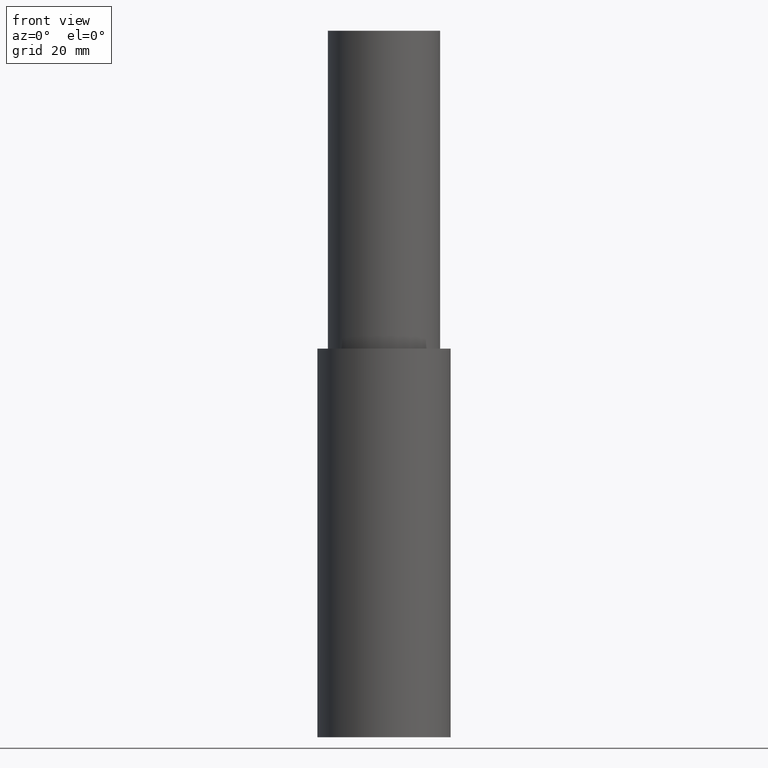
[diagram: clean part render]
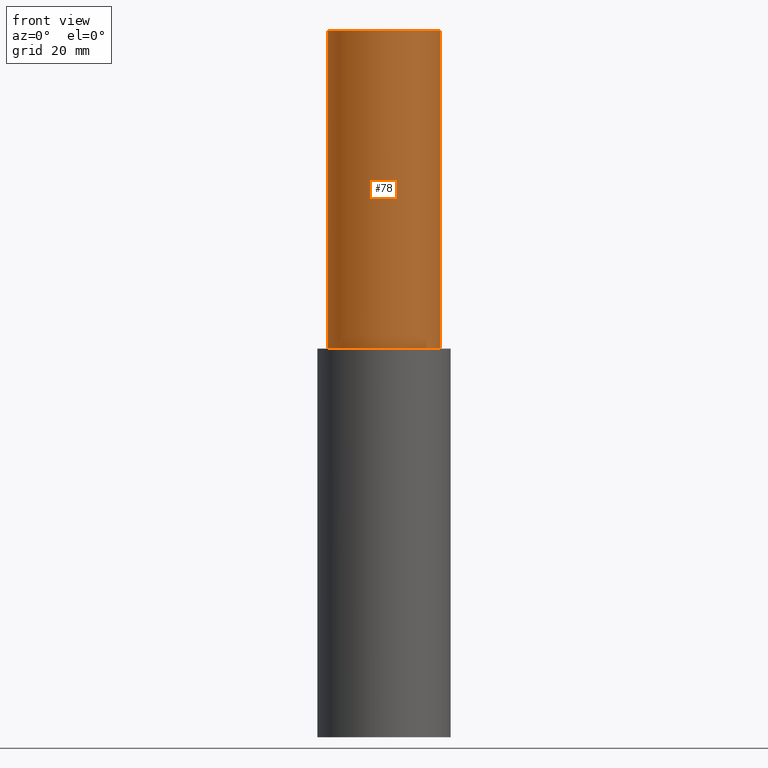
[diagram: same view with one face highlighted and labeled with its STEP entity id]
A machine part, front view. The second image highlights one B-rep face of the part: STEP entity #78.
In plain terms, the highlighted cylindrical surface (bore or boss wall) has radius 16 mm, axis along (0, -0, -1).
Its self-contained STEP definition (entity closure, byte-faithful):
#78=ADVANCED_FACE('',(#89,#90),#91,.T.);
#89=FACE_BOUND('',#102,.T.);
#90=FACE_BOUND('',#103,.T.);
#91=CYLINDRICAL_SURFACE('',#104,16.0000000004298);
#102=EDGE_LOOP('',(#121));
#103=EDGE_LOOP('',(#122));
#104=AXIS2_PLACEMENT_3D('',#123,#124,#125);
#121=ORIENTED_EDGE('',*,*,#133,.F.);
#122=ORIENTED_EDGE('',*,*,#132,.T.);
#123=CARTESIAN_POINT('',(-9.49101269339191E-015,2.810053821137E-015,154.999999999999));
#124=DIRECTION('',(6.12323399573677E-017,-1.81293794912066E-017,-1.0));
#125=DIRECTION('',(-3.71704840254733E-033,1.0,-1.81293794912066E-017));
#132=EDGE_CURVE('',#138,#138,#139,.T.);
#133=EDGE_CURVE('',#140,#140,#141,.T.);
#138=VERTEX_POINT('',#146);
#139=CIRCLE('',#147,16.0000000004299);
#140=VERTEX_POINT('',#148);
#141=CIRCLE('',#149,16.0000000004298);
#146=CARTESIAN_POINT('',(-6.73555739531045E-015,16.0000000004299,110.0));
#147=AXIS2_PLACEMENT_3D('',#156,#157,#158);
#148=CARTESIAN_POINT('',(-1.22464679914734E-014,16.0000000004298,199.999999999998));
#149=AXIS2_PLACEMENT_3D('',#159,#160,#161);
#156=CARTESIAN_POINT('',(-6.73555739531045E-015,1.99423174403271E-015,110.0));
#157=DIRECTION('',(-6.12323399573677E-017,1.81293794912065E-017,1.0));
#158=DIRECTION('',(-3.71704840254733E-033,1.0,-1.81293794912065E-017));
#159=CARTESIAN_POINT('',(-1.22464679914734E-014,3.62587589824125E-015,199.999999999998));
#160=DIRECTION('',(-6.12323399573677E-017,1.81293794912066E-017,1.0));
#161=DIRECTION('',(-3.71704840254733E-033,1.0,-1.81293794912066E-017));